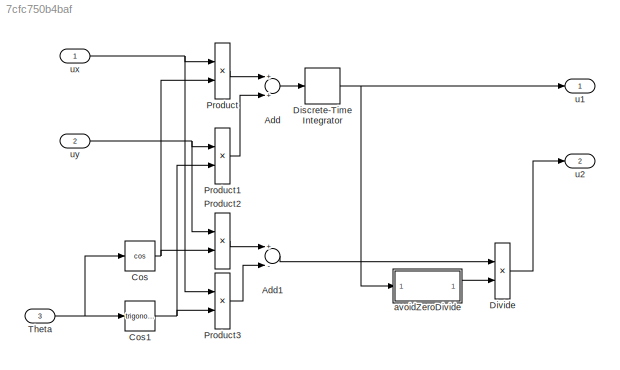
MODEL slx_7cfc750b4baf
KIND model
CONFIG AbsTol = auto
CONFIG EnableMultiTasking = off
CONFIG FixedStep = Simulation_Step
CONFIG MaxStep = auto
CONFIG MinStep = auto
CONFIG RelTol = 1e-3
CONFIG SampleTimeConstraint = Unconstrained
CONFIG Solver = FixedStepAuto
CONFIG SolverName = FixedStepAuto
CONFIG StartTime = 0.0
CONFIG StopTime = 10.0
BLOCK [Sum] Add
  InputSameDT = off
  OutDataTypeStr = Inherit: Inherit via internal rule
  Ports = [2, 1]
  SaturateOnIntegerOverflow = off
BLOCK [Sum] Add1
  InputSameDT = off
  Inputs = +-
  OutDataTypeStr = Inherit: Inherit via internal rule
  Ports = [2, 1]
  SaturateOnIntegerOverflow = off
BLOCK [Trigonometry] Cos
  Operator = cos
  Ports = [1, 1]
BLOCK [Trigonometry] Cos1
  Ports = [1, 1]
BLOCK [DiscreteIntegrator] Discrete-Time Integrator
  ICPrevOutput = DiscIntNeverNeededParam
  ICPrevScaledInput = DiscIntNeverNeededParam
  InitialCondition = 0.001
  InitialConditionSetting = Auto
  Ports = [1, 1]
  SampleTime = -1
BLOCK [Product] Divide
  InputSameDT = off
  Inputs = */
  OutDataTypeStr = Inherit: Inherit via internal rule
  Ports = [2, 1]
  RndMeth = Floor
  SaturateOnIntegerOverflow = off
BLOCK [Product] Product
  InputSameDT = off
  OutDataTypeStr = Inherit: Inherit via internal rule
  Ports = [2, 1]
  RndMeth = Floor
  SaturateOnIntegerOverflow = off
BLOCK [Product] Product1
  InputSameDT = off
  OutDataTypeStr = Inherit: Inherit via internal rule
  Ports = [2, 1]
  RndMeth = Floor
  SaturateOnIntegerOverflow = off
BLOCK [Product] Product2
  InputSameDT = off
  OutDataTypeStr = Inherit: Inherit via internal rule
  Ports = [2, 1]
  RndMeth = Floor
  SaturateOnIntegerOverflow = off
BLOCK [Product] Product3
  InputSameDT = off
  OutDataTypeStr = Inherit: Inherit via internal rule
  Ports = [2, 1]
  RndMeth = Floor
  SaturateOnIntegerOverflow = off
BLOCK [Inport] Theta
  IconDisplay = Port number
  OutDataTypeStr = double
  Port = 3
  PortDimensions = 1
  SamplingMode = Sample based
  SignalType = real
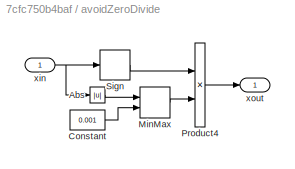
BLOCK [SubSystem] avoidZeroDivide
  Ports = [1, 1]
  RequestExecContextInheritance = off
BLOCK [Abs] avoidZeroDivide/Abs
  SaturateOnIntegerOverflow = off
BLOCK [Constant] avoidZeroDivide/Constant
  Value = 0.001
BLOCK [MinMax] avoidZeroDivide/MinMax
  Function = max
  InputSameDT = off
  Inputs = 2
  Ports = [2, 1]
  SaturateOnIntegerOverflow = off
BLOCK [Product] avoidZeroDivide/Product4
  InputSameDT = off
  OutDataTypeStr = Inherit: Inherit via internal rule
  Ports = [2, 1]
  RndMeth = Floor
  SaturateOnIntegerOverflow = off
BLOCK [Signum] avoidZeroDivide/Sign
BLOCK [Inport] avoidZeroDivide/xin
  IconDisplay = Port number
BLOCK [Outport] avoidZeroDivide/xout
  IconDisplay = Port number
BLOCK [Outport] u1
  IconDisplay = Port number
  OutDataTypeStr = double
  PortDimensions = 1
  SamplingMode = Sample based
  SignalType = real
BLOCK [Outport] u2
  IconDisplay = Port number
  OutDataTypeStr = double
  Port = 2
  PortDimensions = 1
  SamplingMode = Sample based
  SignalType = real
BLOCK [Inport] ux
  IconDisplay = Port number
  OutDataTypeStr = double
  PortDimensions = 1
  SamplingMode = Sample based
  SignalType = real
BLOCK [Inport] uy
  IconDisplay = Port number
  OutDataTypeStr = double
  Port = 2
  PortDimensions = 1
  SamplingMode = Sample based
  SignalType = real
LINE Add1:1 -> Divide:1
LINE Add:1 -> Discrete-Time Integrator:1
NET Cos1:1 -> Product1:2, Product3:2
NET Cos:1 -> Product2:2, Product:2
NET Discrete-Time Integrator:1 -> avoidZeroDivide:1, u1:1
LINE Divide:1 -> u2:1
LINE Product1:1 -> Add:2
LINE Product2:1 -> Add1:1
LINE Product3:1 -> Add1:2
LINE Product:1 -> Add:1
NET Theta:1 -> Cos1:1, Cos:1
LINE avoidZeroDivide/Abs:1 -> avoidZeroDivide/MinMax:1
LINE avoidZeroDivide/Constant:1 -> avoidZeroDivide/MinMax:2
LINE avoidZeroDivide/MinMax:1 -> avoidZeroDivide/Product4:2
LINE avoidZeroDivide/Product4:1 -> avoidZeroDivide/xout:1
LINE avoidZeroDivide/Sign:1 -> avoidZeroDivide/Product4:1
NET avoidZeroDivide/xin:1 -> avoidZeroDivide/Abs:1, avoidZeroDivide/Sign:1
LINE avoidZeroDivide:1 -> Divide:2
NET ux:1 -> Product3:1, Product:1
NET uy:1 -> Product1:1, Product2:1
note: NET lines group one-source signal fan-out (src -> all destinations, sorted); 1:1 wires keep LINE
